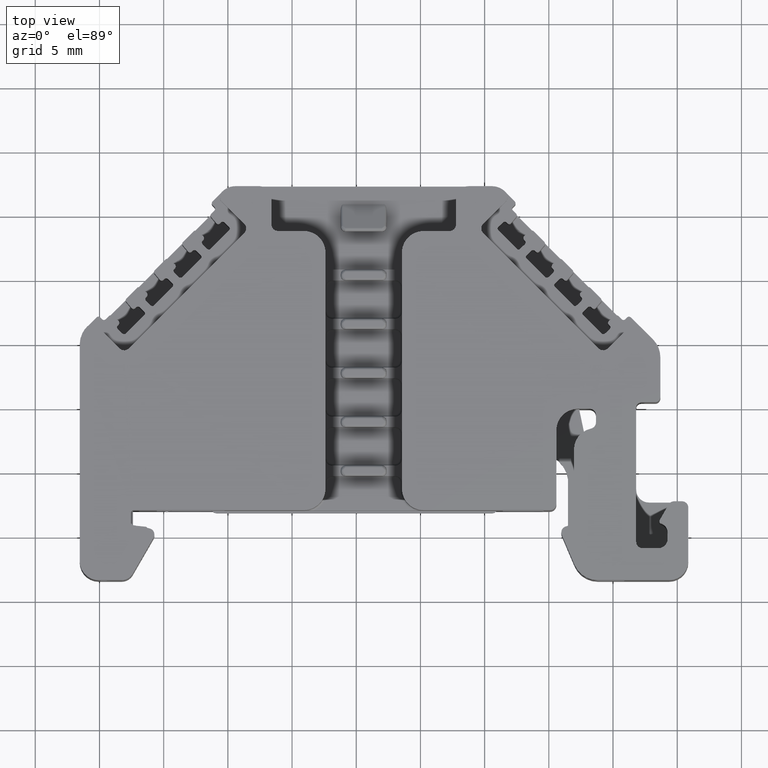
[diagram: clean part render]
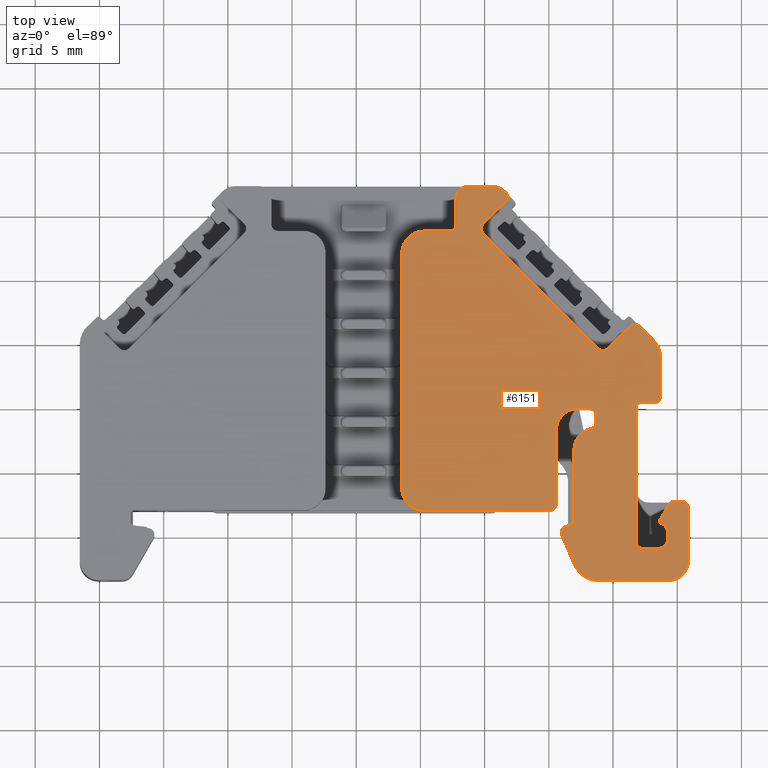
[diagram: same view with one face highlighted and labeled with its STEP entity id]
A machine part, top view. The second image highlights one B-rep face of the part: STEP entity #6151.
In plain terms, the highlighted planar face has unit normal (0, 0, 1).
Its self-contained STEP definition (entity closure, byte-faithful):
#73 = DIRECTION ( 'NONE',  ( -0.0000000000000000000, -0.0000000000000000000, -1.000000000000000000 ) ) ;
#82 = DIRECTION ( 'NONE',  ( 1.000000000000000000, -8.715823494909338000E-014, 0.0000000000000000000 ) ) ;
#88 = CARTESIAN_POINT ( 'NONE',  ( -249.7762473069555500, -1.020564901228759600, 8.498021178400511700 ) ) ;
#109 = DIRECTION ( 'NONE',  ( -0.7116619484723772900, -0.7025220787252878200, 0.0000000000000000000 ) ) ;
#116 = CARTESIAN_POINT ( 'NONE',  ( -238.6743608650446300, -8.656500748587717500, 8.498021178400510000 ) ) ;
#144 = LINE ( 'NONE', #116, #16601 ) ;
#157 = DIRECTION ( 'NONE',  ( -1.000000000000000000, 0.0000000000000000000, 0.0000000000000000000 ) ) ;
#183 = CARTESIAN_POINT ( 'NONE',  ( -254.7689907674576900, -2.906987126358033400, 8.498021178400510000 ) ) ;
#187 = DIRECTION ( 'NONE',  ( -0.0000000000000000000, -0.0000000000000000000, 1.000000000000000000 ) ) ;
#269 = LINE ( 'NONE', #286, #16568 ) ;
#273 = DIRECTION ( 'NONE',  ( -0.7071067811865474600, 0.7071067811865474600, -0.0000000000000000000 ) ) ;
#286 = CARTESIAN_POINT ( 'NONE',  ( -222.4855863816189300, -24.05920298296593900, 8.498021178400524200 ) ) ;
#311 = LINE ( 'NONE', #340, #16581 ) ;
#327 = DIRECTION ( 'NONE',  ( 1.000000000000000000, 1.144917493975123900E-011, -0.0000000000000000000 ) ) ;
#340 = CARTESIAN_POINT ( 'NONE',  ( -242.3187895104255200, -14.55571399533997500, 8.498021178400511700 ) ) ;
#343 = LINE ( 'NONE', #355, #16638 ) ;
#354 = DIRECTION ( 'NONE',  ( 0.9999999976762969900, 6.817188523727749200E-005, -0.0000000000000000000 ) ) ;
#355 = CARTESIAN_POINT ( 'NONE',  ( -215.5813241533131500, -22.26813505548619800, 8.498021178400531300 ) ) ;
#697 = DIRECTION ( 'NONE',  ( -1.000000000000000000, -0.0000000000000000000, -0.0000000000000000000 ) ) ;
#709 = CARTESIAN_POINT ( 'NONE',  ( -236.7108333289609200, -25.94257073046048100, 8.498021178400510000 ) ) ;
#740 = LINE ( 'NONE', #709, #14816 ) ;
#984 = CARTESIAN_POINT ( 'NONE',  ( -244.4135319854846400, -22.47648307557049900, 8.498021178400511700 ) ) ;
#995 = CARTESIAN_POINT ( 'NONE',  ( -244.4135319854846100, -22.60609756253073100, 8.498021178400511700 ) ) ;
#998 = CARTESIAN_POINT ( 'NONE',  ( -244.9086228565896000, -22.97157394667562300, 8.498021178400511700 ) ) ;
#1013 = CARTESIAN_POINT ( 'NONE',  ( -244.4668894616580700, -22.73491390516280600, 8.498021178400511700 ) ) ;
#1025 = CARTESIAN_POINT ( 'NONE',  ( -244.6501920269972500, -22.91821647050199900, 8.498021178400511700 ) ) ;
#1027 = CARTESIAN_POINT ( 'NONE',  ( -244.7790083696293700, -22.97157394667550200, 8.498021178400511700 ) ) ;
#1073 = VERTEX_POINT ( 'NONE', #4589 ) ;
#1088 = VERTEX_POINT ( 'NONE', #4582 ) ;
#1091 = VERTEX_POINT ( 'NONE', #4584 ) ;
#1098 = VERTEX_POINT ( 'NONE', #4610 ) ;
#1099 = VERTEX_POINT ( 'NONE', #4608 ) ;
#1103 = VERTEX_POINT ( 'NONE', #4613 ) ;
#1112 = VERTEX_POINT ( 'NONE', #4661 ) ;
#1116 = VERTEX_POINT ( 'NONE', #4637 ) ;
#1118 = VERTEX_POINT ( 'NONE', #4668 ) ;
#1127 = VERTEX_POINT ( 'NONE', #4624 ) ;
#1148 = VERTEX_POINT ( 'NONE', #4641 ) ;
#1152 = VERTEX_POINT ( 'NONE', #4642 ) ;
#1189 = VERTEX_POINT ( 'NONE', #4725 ) ;
#1242 = VERTEX_POINT ( 'NONE', #4746 ) ;
#1332 = B_SPLINE_CURVE_WITH_KNOTS ( 'NONE', 3,
 ( #984, #995, #1013, #1025, #1027, #998 ),
 .UNSPECIFIED., .F., .F.,
 ( 4, 2, 4 ),
 ( 0.0000000000000000000, 0.5000000000000000000, 1.000000000000000000 ),
 .UNSPECIFIED. ) ;
#1359 = VERTEX_POINT ( 'NONE', #4778 ) ;
#1439 = B_SPLINE_CURVE_WITH_KNOTS ( 'NONE', 3,
 ( #3124, #3137, #3138, #3140, #3104, #3105, #3146, #3170, #3187, #3188, #3199, #3171, #3201, #3159 ),
 .UNSPECIFIED., .F., .F.,
 ( 4, 2, 2, 1, 1, 2, 2, 4 ),
 ( 0.0000000000000000000, 0.2500000000003287400, 0.5000000000006574700, 0.6250000000008217900, 0.6875000000009038300, 0.7187500000009450200, 0.7500000000009862100, 1.000000000000000000 ),
 .UNSPECIFIED. ) ;
#1481 = B_SPLINE_CURVE_WITH_KNOTS ( 'NONE', 3,
 ( #21588, #21626, #21608, #21602, #21610, #21628, #21600, #21620, #21629, #21614, #21580 ),
 .UNSPECIFIED., .F., .F.,
 ( 4, 2, 1, 2, 2, 4 ),
 ( 0.0000000000000000000, 0.4999999999999927800, 0.6250000000000143200, 0.6875000000000102100, 0.7500000000000060000, 1.000000000000000000 ),
 .UNSPECIFIED. ) ;
#1605 = B_SPLINE_CURVE_WITH_KNOTS ( 'NONE', 3,
 ( #21966, #22017, #21993, #22023, #21983, #22003 ),
 .UNSPECIFIED., .F., .F.,
 ( 4, 2, 4 ),
 ( 0.0000000000000000000, 0.5000000000000000000, 1.000000000000000000 ),
 .UNSPECIFIED. ) ;
#1855 = B_SPLINE_CURVE_WITH_KNOTS ( 'NONE', 3,
 ( #14615, #14585, #14671, #14635, #14636, #14672 ),
 .UNSPECIFIED., .F., .F.,
 ( 4, 2, 4 ),
 ( 0.0000000000000000000, 0.5000000000000000000, 1.000000000000000000 ),
 .UNSPECIFIED. ) ;
#1974 = B_SPLINE_CURVE_WITH_KNOTS ( 'NONE', 3,
 ( #13862, #13831, #13847, #13828, #13832, #13843 ),
 .UNSPECIFIED., .F., .F.,
 ( 4, 2, 4 ),
 ( 0.0000000000000000000, 0.5000000000000000000, 1.000000000000000000 ),
 .UNSPECIFIED. ) ;
#2168 = EDGE_CURVE ( 'NONE', #18035, #22096, #4944, .T. ) ;
#2584 = EDGE_CURVE ( 'NONE', #1091, #18065, #17738, .T. ) ;
#2596 = EDGE_CURVE ( 'NONE', #1099, #18066, #17758, .T. ) ;
#2603 = EDGE_CURVE ( 'NONE', #10855, #17497, #17762, .T. ) ;
#2652 = EDGE_CURVE ( 'NONE', #18039, #22094, #17790, .T. ) ;
#2670 = EDGE_CURVE ( 'NONE', #1088, #22032, #17801, .T. ) ;
#2673 = EDGE_CURVE ( 'NONE', #9610, #18061, #17797, .T. ) ;
#2677 = EDGE_CURVE ( 'NONE', #22086, #1127, #17812, .T. ) ;
#2689 = EDGE_CURVE ( 'NONE', #22096, #22632, #17815, .T. ) ;
#2757 = VERTEX_POINT ( 'NONE', #20113 ) ;
#2791 = VERTEX_POINT ( 'NONE', #20111 ) ;
#3104 = CARTESIAN_POINT ( 'NONE',  ( -252.3409624411216900, -1.031983799909655900, 8.498021178400508200 ) ) ;
#3105 = CARTESIAN_POINT ( 'NONE',  ( -252.4095757898710400, -1.101879164453230400, 8.498021178400506400 ) ) ;
#3124 = CARTESIAN_POINT ( 'NONE',  ( -252.2417029484520000, -0.7285056311585247400, 8.498021178400510000 ) ) ;
#3137 = CARTESIAN_POINT ( 'NONE',  ( -252.2428043055238000, -0.7970822493878825200, 8.498021178400510000 ) ) ;
#3138 = CARTESIAN_POINT ( 'NONE',  ( -252.2554384611572700, -0.8605434817064653300, 8.498021178400510000 ) ) ;
#3140 = CARTESIAN_POINT ( 'NONE',  ( -252.3037723695470300, -0.9772351745220814200, 8.498021178400510000 ) ) ;
#3146 = CARTESIAN_POINT ( 'NONE',  ( -252.4477084235377000, -1.133134118474123000, 8.498021178400510000 ) ) ;
#3159 = CARTESIAN_POINT ( 'NONE',  ( -252.7367739251235700, -1.223596501863810400, 8.498021178400510000 ) ) ;
#3170 = CARTESIAN_POINT ( 'NONE',  ( -252.4988919249096600, -1.163135957059429500, 8.498021178400510000 ) ) ;
#3171 = CARTESIAN_POINT ( 'NONE',  ( -252.6089013505593100, -1.210938953082484300, 8.498021178400508200 ) ) ;
#3187 = CARTESIAN_POINT ( 'NONE',  ( -252.5222624459463800, -1.174609114787617200, 8.498021178400510000 ) ) ;
#3188 = CARTESIAN_POINT ( 'NONE',  ( -252.5381616232453200, -1.181950159252168000, 8.498021178400513500 ) ) ;
#3199 = CARTESIAN_POINT ( 'NONE',  ( -252.5477437573174800, -1.186065945135715800, 8.498021178400510000 ) ) ;
#3201 = CARTESIAN_POINT ( 'NONE',  ( -252.6696463104486800, -1.222527916141969300, 8.498021178400510000 ) ) ;
#4582 = CARTESIAN_POINT ( 'NONE',  ( -251.2515212062420500, 2.278096367804687700, 8.498021178400511700 ) ) ;
#4584 = CARTESIAN_POINT ( 'NONE',  ( -234.1365920300655700, -22.76445712408548500, 8.498021178400511700 ) ) ;
#4589 = CARTESIAN_POINT ( 'NONE',  ( -241.3280807490684800, -15.54589593503098600, 8.498021178400510000 ) ) ;
#4608 = CARTESIAN_POINT ( 'NONE',  ( -236.3147773137453700, -11.05030546451253800, 8.498021178400510000 ) ) ;
#4610 = CARTESIAN_POINT ( 'NONE',  ( -241.3280807490684800, -16.12412196492352100, 8.498021178400510000 ) ) ;
#4613 = CARTESIAN_POINT ( 'NONE',  ( -234.1365920300656000, -26.93266702404786300, 8.498021178400511700 ) ) ;
#4624 = CARTESIAN_POINT ( 'NONE',  ( -249.4381057926461000, 2.278096367804687700, 8.498021178400511700 ) ) ;
#4637 = CARTESIAN_POINT ( 'NONE',  ( -243.0481573067123700, -18.25375987659870300, 8.498021178400510000 ) ) ;
#4641 = CARTESIAN_POINT ( 'NONE',  ( -241.7190072394439800, -16.60813100661460600, 8.498021178400510000 ) ) ;
#4642 = CARTESIAN_POINT ( 'NONE',  ( -235.6218646433806300, -28.41793963736284600, 8.498021178400511700 ) ) ;
#4661 = CARTESIAN_POINT ( 'NONE',  ( -243.0481573067123700, -23.67083131780067600, 8.498021178400510000 ) ) ;
#4668 = CARTESIAN_POINT ( 'NONE',  ( -243.4572773524452300, -24.15840078755485000, 8.498021178400510000 ) ) ;
#4725 = CARTESIAN_POINT ( 'NONE',  ( -241.1789237545942800, -28.41793963736255800, 8.498021178400511700 ) ) ;
#4746 = CARTESIAN_POINT ( 'NONE',  ( -235.2418472796404700, -22.26947535041557600, 8.498021178400522400 ) ) ;
#4778 = CARTESIAN_POINT ( 'NONE',  ( -236.7108333316977600, -25.94257073046082600, 8.498021178400510000 ) ) ;
#4944 = LINE ( 'NONE', #4947, #17578 ) ;
#4947 = CARTESIAN_POINT ( 'NONE',  ( -244.4135319854846700, -2.512297812365318800, 8.498021178400510000 ) ) ;
#4998 = DIRECTION ( 'NONE',  ( -0.0000000000000000000, 1.000000000000000000, 0.0000000000000000000 ) ) ;
#5663 = EDGE_CURVE ( 'NONE', #22747, #18845, #1481, .T. ) ;
#5771 = EDGE_CURVE ( 'NONE', #22747, #22535, #1605, .T. ) ;
#5786 = EDGE_CURVE ( 'NONE', #18845, #22483, #10935, .T. ) ;
#6020 = EDGE_CURVE ( 'NONE', #22632, #22689, #11820, .T. ) ;
#6151 = ADVANCED_FACE ( 'NONE', ( #12488 ), #12478, .T. ) ;
#6232 = EDGE_CURVE ( 'NONE', #1098, #1148, #24181, .T. ) ;
#6236 = EDGE_CURVE ( 'NONE', #22044, #1189, #24193, .T. ) ;
#6239 = EDGE_CURVE ( 'NONE', #1073, #1098, #13024, .T. ) ;
#6246 = EDGE_CURVE ( 'NONE', #1091, #1103, #13045, .T. ) ;
#6248 = EDGE_CURVE ( 'NONE', #1116, #1112, #13049, .T. ) ;
#6249 = EDGE_CURVE ( 'NONE', #17497, #9610, #13081, .T. ) ;
#6252 = EDGE_CURVE ( 'NONE', #1103, #1152, #24255, .T. ) ;
#6258 = EDGE_CURVE ( 'NONE', #1148, #1116, #24228, .T. ) ;
#6270 = EDGE_CURVE ( 'NONE', #1112, #1118, #24222, .T. ) ;
#6271 = EDGE_CURVE ( 'NONE', #22689, #1073, #24237, .T. ) ;
#6278 = EDGE_CURVE ( 'NONE', #1118, #17982, #12937, .T. ) ;
#6279 = EDGE_CURVE ( 'NONE', #1189, #1152, #13234, .T. ) ;
#6280 = EDGE_CURVE ( 'NONE', #1127, #1088, #13202, .T. ) ;
#6284 = EDGE_CURVE ( 'NONE', #22094, #1099, #13216, .T. ) ;
#6428 = EDGE_CURVE ( 'NONE', #17987, #17982, #1974, .T. ) ;
#6615 = EDGE_CURVE ( 'NONE', #2757, #1242, #1855, .T. ) ;
#6669 = EDGE_CURVE ( 'NONE', #2791, #1359, #15034, .T. ) ;
#6924 = EDGE_CURVE ( 'NONE', #18522, #18509, #16280, .T. ) ;
#6938 = EDGE_CURVE ( 'NONE', #22064, #22070, #16379, .T. ) ;
#6939 = EDGE_CURVE ( 'NONE', #22083, #17495, #17214, .T. ) ;
#6942 = EDGE_CURVE ( 'NONE', #22037, #18522, #17284, .T. ) ;
#6950 = EDGE_CURVE ( 'NONE', #22032, #18068, #17288, .T. ) ;
#6953 = EDGE_CURVE ( 'NONE', #18048, #22040, #16278, .T. ) ;
#6962 = EDGE_CURVE ( 'NONE', #18001, #22036, #17351, .T. ) ;
#6963 = EDGE_CURVE ( 'NONE', #22070, #22052, #17334, .T. ) ;
#6974 = EDGE_CURVE ( 'NONE', #17495, #9608, #16395, .T. ) ;
#6987 = EDGE_CURVE ( 'NONE', #9608, #18045, #17381, .T. ) ;
#6994 = EDGE_CURVE ( 'NONE', #17987, #22044, #17419, .T. ) ;
#6995 = EDGE_CURVE ( 'NONE', #18509, #22086, #16403, .T. ) ;
#7025 = EDGE_CURVE ( 'NONE', #22052, #22037, #16540, .T. ) ;
#7036 = EDGE_CURVE ( 'NONE', #22040, #22064, #144, .T. ) ;
#7042 = EDGE_CURVE ( 'NONE', #22036, #22083, #16587, .T. ) ;
#7069 = EDGE_CURVE ( 'NONE', #18066, #18048, #269, .T. ) ;
#7077 = EDGE_CURVE ( 'NONE', #18061, #18039, #311, .T. ) ;
#7090 = EDGE_CURVE ( 'NONE', #1242, #18065, #343, .T. ) ;
#7182 = EDGE_CURVE ( 'NONE', #1359, #10855, #740, .T. ) ;
#7260 = EDGE_CURVE ( 'NONE', #18035, #18045, #1332, .T. ) ;
#7296 = EDGE_CURVE ( 'NONE', #18068, #18001, #1439, .T. ) ;
#7523 = EDGE_CURVE ( 'NONE', #2757, #22535, #8585, .T. ) ;
#7548 = EDGE_CURVE ( 'NONE', #22483, #2791, #24503, .T. ) ;
#7837 = CARTESIAN_POINT ( 'NONE',  ( -252.2417029484520000, -0.7285056311585247400, 8.498021178400510000 ) ) ;
#7847 = CARTESIAN_POINT ( 'NONE',  ( -248.3873132571849900, 1.046228372820613200, 8.498021178400511700 ) ) ;
#7865 = CARTESIAN_POINT ( 'NONE',  ( -236.8948123491185000, -9.649977015465792000, 8.498021178400510000 ) ) ;
#7879 = CARTESIAN_POINT ( 'NONE',  ( -235.7492650406876700, -24.70256073005829800, 8.498021178400511700 ) ) ;
#7898 = CARTESIAN_POINT ( 'NONE',  ( -248.2208901358063700, 1.444367881857992100, 8.498021178400511700 ) ) ;
#7902 = CARTESIAN_POINT ( 'NONE',  ( -252.2417029484520600, 1.287914625594687400, 8.498021178400510000 ) ) ;
#7952 = CARTESIAN_POINT ( 'NONE',  ( -250.1240610794955900, -0.6682290525229883600, 8.498021178400511700 ) ) ;
#7962 = CARTESIAN_POINT ( 'NONE',  ( -254.7690584085315800, -1.223678165960060600, 8.498021178400510000 ) ) ;
#7971 = CARTESIAN_POINT ( 'NONE',  ( -241.1192790592797900, -10.37879012811012400, 8.498021178400510000 ) ) ;
#7975 = CARTESIAN_POINT ( 'NONE',  ( -240.4213634446920500, -10.38106658553718700, 8.498021178400511700 ) ) ;
#7990 = CARTESIAN_POINT ( 'NONE',  ( -238.6743608650446000, -8.656500748587717500, 8.498021178400511700 ) ) ;
#7992 = CARTESIAN_POINT ( 'NONE',  ( -243.0002330180595900, -27.21518279980067600, 8.498021178400511700 ) ) ;
#7995 = CARTESIAN_POINT ( 'NONE',  ( -256.4522997292147600, -2.906987126358034200, 8.498021178400510000 ) ) ;
#7998 = CARTESIAN_POINT ( 'NONE',  ( -248.3798405562309600, 1.834989492392564700, 8.498021178400511700 ) ) ;
#8015 = CARTESIAN_POINT ( 'NONE',  ( -250.1263506536168700, -1.370625777803190500, 8.498021178400511700 ) ) ;
#8017 = CARTESIAN_POINT ( 'NONE',  ( -236.3147773137438600, -14.15964129839157500, 8.498021178400510000 ) ) ;
#8019 = CARTESIAN_POINT ( 'NONE',  ( -244.4135319854846700, -16.73411382813915800, 8.498021178400511700 ) ) ;
#8051 = CARTESIAN_POINT ( 'NONE',  ( -235.7492650406875900, -25.19765160116328700, 8.498021178400511700 ) ) ;
#8069 = CARTESIAN_POINT ( 'NONE',  ( -242.7302230237276300, -15.05080486638215100, 8.498021178400511700 ) ) ;
#8074 = CARTESIAN_POINT ( 'NONE',  ( -241.8231716201734100, -15.05080486638214600, 8.498021178400510000 ) ) ;
#8111 = CARTESIAN_POINT ( 'NONE',  ( -236.3839017867237500, -23.76688685095150800, 8.498021178400511700 ) ) ;
#8298 = CARTESIAN_POINT ( 'NONE',  ( -236.2947555402149900, -23.98489507003267500, 8.498021178400511700 ) ) ;
#8585 = LINE ( 'NONE', #8605, #15348 ) ;
#8605 = CARTESIAN_POINT ( 'NONE',  ( -235.6624214379854700, -22.51699068626992400, 8.498021178400511700 ) ) ;
#8606 = DIRECTION ( 'NONE',  ( -0.4999233245515611900, -0.8660696678497142900, -0.0000000000000000000 ) ) ;
#8742 = CARTESIAN_POINT ( 'NONE',  ( -235.7492650406875900, -25.19765160116328700, 8.498021178400511700 ) ) ;
#8743 = CARTESIAN_POINT ( 'NONE',  ( -235.8953022262949700, -25.65201208792303000, 8.498021178400510000 ) ) ;
#8745 = CARTESIAN_POINT ( 'NONE',  ( -235.7493948461929000, -25.24517692591066600, 8.498021178400511700 ) ) ;
#8746 = CARTESIAN_POINT ( 'NONE',  ( -236.0034833579896400, -25.76049114424465000, 8.498021178400510000 ) ) ;
#8753 = CARTESIAN_POINT ( 'NONE',  ( -235.7853323454623900, -25.42772872162919000, 8.498021178400508200 ) ) ;
#8754 = CARTESIAN_POINT ( 'NONE',  ( -236.0620922665172500, -25.80834360993105700, 8.498021178400511700 ) ) ;
#8761 = CARTESIAN_POINT ( 'NONE',  ( -236.1383764261562700, -25.85299412723492900, 8.498021178400508200 ) ) ;
#8763 = CARTESIAN_POINT ( 'NONE',  ( -236.1727640159351200, -25.86973491479439600, 8.498021178400510000 ) ) ;
#8768 = CARTESIAN_POINT ( 'NONE',  ( -236.1960656043444000, -25.88036318462783900, 8.498021178400508200 ) ) ;
#8769 = CARTESIAN_POINT ( 'NONE',  ( -236.3069654373192300, -25.92479624188564800, 8.498021178400510000 ) ) ;
#8771 = CARTESIAN_POINT ( 'NONE',  ( -236.3983557215921700, -25.94222835095199600, 8.498021178400511700 ) ) ;
#8774 = CARTESIAN_POINT ( 'NONE',  ( -235.8390570216058100, -25.56688178096770500, 8.498021178400510000 ) ) ;
#8777 = CARTESIAN_POINT ( 'NONE',  ( -235.7723231664122900, -25.38294867079852700, 8.498021178400511700 ) ) ;
#8778 = CARTESIAN_POINT ( 'NONE',  ( -236.2090528041225400, -25.88586767537278600, 8.498021178400510000 ) ) ;
#8782 = CARTESIAN_POINT ( 'NONE',  ( -235.7560292412231300, -25.31509227607334700, 8.498021178400508200 ) ) ;
#8785 = CARTESIAN_POINT ( 'NONE',  ( -235.7921874544721000, -25.44805762223391500, 8.498021178400510000 ) ) ;
#8815 = CARTESIAN_POINT ( 'NONE',  ( -234.6235413669897700, -22.26943319933576900, 8.498021178400520600 ) ) ;
#8840 = CARTESIAN_POINT ( 'NONE',  ( -236.4941028384079700, -25.94248939885105200, 8.498021178400510000 ) ) ;
#9608 = VERTEX_POINT ( 'NONE', #10124 ) ;
#9610 = VERTEX_POINT ( 'NONE', #10113 ) ;
#9623 = CARTESIAN_POINT ( 'NONE',  ( -252.7367739251235700, -1.223596501863810400, 8.498021178400510000 ) ) ;
#9642 = CARTESIAN_POINT ( 'NONE',  ( -243.9901762766351100, -24.89653900420753600, 8.498021178400510000 ) ) ;
#9650 = CARTESIAN_POINT ( 'NONE',  ( -244.4135319854846400, -22.47648307557049900, 8.498021178400511700 ) ) ;
#9657 = CARTESIAN_POINT ( 'NONE',  ( -243.6208197861406900, -24.21456787273882600, 8.498021178400510000 ) ) ;
#9663 = CARTESIAN_POINT ( 'NONE',  ( -236.7108500106246500, -14.55571399527577700, 8.498021178400510000 ) ) ;
#9958 = CARTESIAN_POINT ( 'NONE',  ( -244.9086228565896000, -22.97157394667562300, 8.498021178400511700 ) ) ;
#10113 = CARTESIAN_POINT ( 'NONE',  ( -238.1961226239573400, -14.95178669216089800, 8.498021178400510000 ) ) ;
#10124 = CARTESIAN_POINT ( 'NONE',  ( -254.7689907674576900, -22.97157394667569400, 8.498021178400511700 ) ) ;
#10140 = CARTESIAN_POINT ( 'NONE',  ( -237.7009983893682100, -25.94257073046048100, 8.498021178400510000 ) ) ;
#10313 = CARTESIAN_POINT ( 'NONE',  ( -237.8857402154315500, -8.659049149153368300, 8.498021178400511700 ) ) ;
#10424 = CARTESIAN_POINT ( 'NONE',  ( -238.1961226239573400, -25.44747986047864800, 8.498021178400510000 ) ) ;
#10454 = CARTESIAN_POINT ( 'NONE',  ( -256.4522997292147000, -21.28826498491869400, 8.498021178400511700 ) ) ;
#10750 = CARTESIAN_POINT ( 'NONE',  ( -237.8000499270768300, -14.55571399528255900, 8.498021178400510000 ) ) ;
#10855 = VERTEX_POINT ( 'NONE', #10140 ) ;
#10918 = DIRECTION ( 'NONE',  ( -0.0000000000000000000, -1.000000000000000000, -0.0000000000000000000 ) ) ;
#10923 = CARTESIAN_POINT ( 'NONE',  ( -235.7492650406877600, -25.19765160116328700, 8.498021178400511700 ) ) ;
#10935 = LINE ( 'NONE', #10923, #23808 ) ;
#11808 = DIRECTION ( 'NONE',  ( 1.000000000000000000, 0.0000000000000000000, -0.0000000000000000000 ) ) ;
#11820 = LINE ( 'NONE', #11833, #24001 ) ;
#11833 = CARTESIAN_POINT ( 'NONE',  ( -215.5761283162624700, -15.05080486638214600, 8.498021178400511700 ) ) ;
#12422 = CARTESIAN_POINT ( 'NONE',  ( -243.6208197861406900, -24.21456787273882600, 8.498021178400510000 ) ) ;
#12456 = CARTESIAN_POINT ( 'NONE',  ( -306.2343412433721700, -2.512297812365318800, 8.498021178400510000 ) ) ;
#12463 = DIRECTION ( 'NONE',  ( 1.000000000000000000, 0.0000000000000000000, -0.0000000000000000000 ) ) ;
#12478 = PLANE ( 'NONE',  #24109 ) ;
#12488 = FACE_OUTER_BOUND ( 'NONE', #20660, .T. ) ;
#12498 = DIRECTION ( 'NONE',  ( 0.0000000000000000000, 0.0000000000000000000, 1.000000000000000000 ) ) ;
#12937 = LINE ( 'NONE', #12422, #24244 ) ;
#12996 = DIRECTION ( 'NONE',  ( 1.000000000000000000, 0.0000000000000000000, 0.0000000000000000000 ) ) ;
#12997 = DIRECTION ( 'NONE',  ( 0.0000000000000000000, -1.000000000000000000, 0.0000000000000000000 ) ) ;
#13001 = DIRECTION ( 'NONE',  ( 0.0000000000000000000, 0.0000000000000000000, 1.000000000000000000 ) ) ;
#13007 = CARTESIAN_POINT ( 'NONE',  ( -241.8231716201734400, -16.12412196492352100, 8.498021178400510000 ) ) ;
#13019 = DIRECTION ( 'NONE',  ( 1.000000000000000000, 0.0000000000000000000, 0.0000000000000000000 ) ) ;
#13024 = LINE ( 'NONE', #13025, #24199 ) ;
#13025 = CARTESIAN_POINT ( 'NONE',  ( -241.3280807490684800, -15.54589593503098600, 8.498021178400510000 ) ) ;
#13030 = CARTESIAN_POINT ( 'NONE',  ( -241.1789237545942500, -26.43757615294285300, 8.498021178400511700 ) ) ;
#13036 = DIRECTION ( 'NONE',  ( -0.0000000000000000000, -0.0000000000000000000, -1.000000000000000000 ) ) ;
#13038 = CARTESIAN_POINT ( 'NONE',  ( -234.1365920300655700, -98.48484845154556000, 8.498021178400511700 ) ) ;
#13039 = CARTESIAN_POINT ( 'NONE',  ( -235.6218646433805800, -26.93266702404786300, 8.498021178400511700 ) ) ;
#13044 = CARTESIAN_POINT ( 'NONE',  ( -241.3648483449640900, -18.25376174835660900, 8.498021178400510000 ) ) ;
#13045 = LINE ( 'NONE', #13038, #24201 ) ;
#13047 = DIRECTION ( 'NONE',  ( 0.0000000000000000000, -1.000000000000000000, 0.0000000000000000000 ) ) ;
#13049 = LINE ( 'NONE', #13080, #24242 ) ;
#13053 = DIRECTION ( 'NONE',  ( -0.0000000000000000000, -1.000000000000000000, -0.0000000000000000000 ) ) ;
#13056 = CARTESIAN_POINT ( 'NONE',  ( -238.1961226239573400, -14.95178669216089800, 8.498021178400510000 ) ) ;
#13058 = DIRECTION ( 'NONE',  ( -0.0000000000000000000, -0.0000000000000000000, -1.000000000000000000 ) ) ;
#13067 = DIRECTION ( 'NONE',  ( 0.0000000000000000000, 0.0000000000000000000, 1.000000000000000000 ) ) ;
#13071 = DIRECTION ( 'NONE',  ( 1.000000000000000000, 0.0000000000000000000, 0.0000000000000000000 ) ) ;
#13074 = DIRECTION ( 'NONE',  ( 0.0000000000000000000, 1.000000000000000000, -0.0000000000000000000 ) ) ;
#13080 = CARTESIAN_POINT ( 'NONE',  ( -243.0481573067123700, -18.25375987659870300, 8.498021178400510000 ) ) ;
#13081 = LINE ( 'NONE', #13056, #24202 ) ;
#13097 = DIRECTION ( 'NONE',  ( -0.0000000000000000000, -0.0000000000000000000, -1.000000000000000000 ) ) ;
#13102 = DIRECTION ( 'NONE',  ( 1.000000000000000000, 0.0000000000000000000, 0.0000000000000000000 ) ) ;
#13104 = CARTESIAN_POINT ( 'NONE',  ( -243.5432481778173600, -23.67083131780068000, 8.498021178400510000 ) ) ;
#13105 = CARTESIAN_POINT ( 'NONE',  ( -241.8231716201734100, -15.54589573748712700, 8.498021178400510000 ) ) ;
#13106 = DIRECTION ( 'NONE',  ( -0.0000000000000000000, -0.0000000000000000000, -1.000000000000000000 ) ) ;
#13112 = DIRECTION ( 'NONE',  ( 1.000000000000000000, 0.0000000000000000000, 0.0000000000000000000 ) ) ;
#13123 = DIRECTION ( 'NONE',  ( 1.000000000000000000, 0.0000000000000000000, 0.0000000000000000000 ) ) ;
#13202 = LINE ( 'NONE', #13241, #24293 ) ;
#13210 = DIRECTION ( 'NONE',  ( 1.000000000000000000, -5.069253405593720000E-014, -0.0000000000000000000 ) ) ;
#13213 = CARTESIAN_POINT ( 'NONE',  ( -257.8386614401953200, -28.41793963736171600, 8.498021178400511700 ) ) ;
#13214 = CARTESIAN_POINT ( 'NONE',  ( -236.3147773137449700, -11.85530006980985900, 8.498021178400510000 ) ) ;
#13216 = LINE ( 'NONE', #13214, #24264 ) ;
#13234 = LINE ( 'NONE', #13213, #24288 ) ;
#13238 = DIRECTION ( 'NONE',  ( -1.000000000000000000, 3.722501875512039800E-018, -0.0000000000000000000 ) ) ;
#13239 = DIRECTION ( 'NONE',  ( -4.772998309357720400E-013, 1.000000000000000000, -0.0000000000000000000 ) ) ;
#13241 = CARTESIAN_POINT ( 'NONE',  ( -257.8742277998431400, 2.278096367804687700, 8.498021178400511700 ) ) ;
#13828 = CARTESIAN_POINT ( 'NONE',  ( -243.8994642821058700, -24.33576904424031200, 8.498021178400510000 ) ) ;
#13831 = CARTESIAN_POINT ( 'NONE',  ( -244.0484898278165200, -24.75995708148176200, 8.498021178400511700 ) ) ;
#13832 = CARTESIAN_POINT ( 'NONE',  ( -243.7670732027948800, -24.24035604801067100, 8.498021178400510000 ) ) ;
#13843 = CARTESIAN_POINT ( 'NONE',  ( -243.6208197861406900, -24.21456787273882600, 8.498021178400510000 ) ) ;
#13847 = CARTESIAN_POINT ( 'NONE',  ( -244.0409163037042800, -24.59694272793218800, 8.498021178400510000 ) ) ;
#13862 = CARTESIAN_POINT ( 'NONE',  ( -243.9901762766351100, -24.89653900420753600, 8.498021178400510000 ) ) ;
#14585 = CARTESIAN_POINT ( 'NONE',  ( -235.6199035944241300, -22.44333256142818900, 8.498021178400511700 ) ) ;
#14615 = CARTESIAN_POINT ( 'NONE',  ( -235.6624214379857000, -22.51699068626984600, 8.498021178400511700 ) ) ;
#14635 = CARTESIAN_POINT ( 'NONE',  ( -235.4114514412686400, -22.29467827306097000, 8.498021178400511700 ) ) ;
#14636 = CARTESIAN_POINT ( 'NONE',  ( -235.3268843172641900, -22.27088553072288200, 8.498021178400511700 ) ) ;
#14671 = CARTESIAN_POINT ( 'NONE',  ( -235.5580461656062100, -22.38095186288788700, 8.498021178400511700 ) ) ;
#14672 = CARTESIAN_POINT ( 'NONE',  ( -235.2418472796404700, -22.26947535041557600, 8.498021178400522400 ) ) ;
#14816 = VECTOR ( 'NONE', #697, 1000.000000000000000 ) ;
#14998 = CARTESIAN_POINT ( 'NONE',  ( -236.4941028384079700, -25.94248939885104800, 8.498021178400510000 ) ) ;
#15034 = LINE ( 'NONE', #14998, #23516 ) ;
#15036 = DIRECTION ( 'NONE',  ( -0.9999999295876784700, -0.0003752660896935208100, -0.0000000000000000000 ) ) ;
#15348 = VECTOR ( 'NONE', #8606, 1000.000000000000000 ) ;
#16260 = VECTOR ( 'NONE', #17237, 1000.000000000000000 ) ;
#16264 = VECTOR ( 'NONE', #17290, 1000.000000000000000 ) ;
#16278 = CIRCLE ( 'NONE', #16376, 0.5594526843486491400 ) ;
#16280 = CIRCLE ( 'NONE', #16344, 0.5594526843486491400 ) ;
#16281 = AXIS2_PLACEMENT_3D ( 'NONE', #17230, #17223, #17238 ) ;
#16309 = VECTOR ( 'NONE', #17313, 999.9999999999998900 ) ;
#16344 = AXIS2_PLACEMENT_3D ( 'NONE', #17199, #17161, #17211 ) ;
#16368 = VECTOR ( 'NONE', #17301, 999.9999999999998900 ) ;
#16376 = AXIS2_PLACEMENT_3D ( 'NONE', #17275, #17306, #17276 ) ;
#16379 = CIRCLE ( 'NONE', #16281, 0.4950908711049695200 ) ;
#16395 = CIRCLE ( 'NONE', #16496, 1.683308961757001800 ) ;
#16403 = CIRCLE ( 'NONE', #16404, 0.5594526843486491400 ) ;
#16404 = AXIS2_PLACEMENT_3D ( 'NONE', #17417, #17423, #17429 ) ;
#16440 = VECTOR ( 'NONE', #17407, 1000.000000000000200 ) ;
#16475 = VECTOR ( 'NONE', #17440, 1000.000000000000000 ) ;
#16495 = VECTOR ( 'NONE', #17345, 1000.000000000000100 ) ;
#16496 = AXIS2_PLACEMENT_3D ( 'NONE', #17392, #17372, #17400 ) ;
#16540 = CIRCLE ( 'NONE', #16614, 0.4950908711050250300 ) ;
#16550 = AXIS2_PLACEMENT_3D ( 'NONE', #183, #187, #157 ) ;
#16568 = VECTOR ( 'NONE', #273, 1000.000000000000100 ) ;
#16581 = VECTOR ( 'NONE', #327, 1000.000000000000000 ) ;
#16587 = CIRCLE ( 'NONE', #16550, 1.683308961757001800 ) ;
#16601 = VECTOR ( 'NONE', #109, 1000.000000000000000 ) ;
#16614 = AXIS2_PLACEMENT_3D ( 'NONE', #88, #73, #82 ) ;
#16638 = VECTOR ( 'NONE', #354, 1000.000000000000100 ) ;
#17161 = DIRECTION ( 'NONE',  ( 0.0000000000000000000, 0.0000000000000000000, 1.000000000000000000 ) ) ;
#17199 = CARTESIAN_POINT ( 'NONE',  ( -248.7803428201550300, 1.444367881857992100, 8.498021178400511700 ) ) ;
#17211 = DIRECTION ( 'NONE',  ( 1.000000000000000000, 0.0000000000000000000, 0.0000000000000000000 ) ) ;
#17214 = LINE ( 'NONE', #17236, #16260 ) ;
#17223 = DIRECTION ( 'NONE',  ( -0.0000000000000000000, -0.0000000000000000000, -1.000000000000000000 ) ) ;
#17230 = CARTESIAN_POINT ( 'NONE',  ( -240.7691757126186200, -10.02872925153573600, 8.498021178400511700 ) ) ;
#17236 = CARTESIAN_POINT ( 'NONE',  ( -256.4522997292147600, -2.512297812365318800, 8.498021178400510000 ) ) ;
#17237 = DIRECTION ( 'NONE',  ( 0.0000000000000000000, -1.000000000000000000, -0.0000000000000000000 ) ) ;
#17238 = DIRECTION ( 'NONE',  ( 1.000000000000000000, -7.007697282339951900E-015, 0.0000000000000000000 ) ) ;
#17273 = CARTESIAN_POINT ( 'NONE',  ( -252.2417029484520600, -2.512297812365318800, 8.498021178400510000 ) ) ;
#17275 = CARTESIAN_POINT ( 'NONE',  ( -238.2813330022875400, -9.054641936009309300, 8.498021178400511700 ) ) ;
#17276 = DIRECTION ( 'NONE',  ( -1.000000000000000000, 9.302253029654244800E-014, 0.0000000000000000000 ) ) ;
#17284 = LINE ( 'NONE', #17286, #16368 ) ;
#17286 = CARTESIAN_POINT ( 'NONE',  ( -250.1240610794955900, -0.6682290525229736000, 8.498021178400510000 ) ) ;
#17288 = LINE ( 'NONE', #17273, #16264 ) ;
#17290 = DIRECTION ( 'NONE',  ( 0.0000000000000000000, -1.000000000000000000, -0.0000000000000000000 ) ) ;
#17301 = DIRECTION ( 'NONE',  ( 0.7116589484255201300, 0.7025251177900210300, 0.0000000000000000000 ) ) ;
#17306 = DIRECTION ( 'NONE',  ( -0.0000000000000000000, -0.0000000000000000000, 1.000000000000000000 ) ) ;
#17313 = DIRECTION ( 'NONE',  ( -0.9999999991926473700, -4.018339797190794200E-005, 0.0000000000000000000 ) ) ;
#17319 = CARTESIAN_POINT ( 'NONE',  ( -241.1192790592797900, -10.37879012811012400, 8.498021178400510000 ) ) ;
#17334 = LINE ( 'NONE', #17319, #16495 ) ;
#17339 = CARTESIAN_POINT ( 'NONE',  ( -252.7367739251235700, -1.223596501863810900, 8.498021178400510000 ) ) ;
#17345 = DIRECTION ( 'NONE',  ( -0.7070638886819908800, 0.7071496710894384900, 0.0000000000000000000 ) ) ;
#17351 = LINE ( 'NONE', #17339, #16309 ) ;
#17372 = DIRECTION ( 'NONE',  ( -0.0000000000000000000, -0.0000000000000000000, 1.000000000000000000 ) ) ;
#17381 = LINE ( 'NONE', #17418, #16475 ) ;
#17392 = CARTESIAN_POINT ( 'NONE',  ( -254.7689907674576900, -21.28826498491869400, 8.498021178400511700 ) ) ;
#17400 = DIRECTION ( 'NONE',  ( -1.000000000000000000, 0.0000000000000000000, 0.0000000000000000000 ) ) ;
#17407 = DIRECTION ( 'NONE',  ( 0.3926585462595914600, -0.9196843295660224200, 0.0000000000000000000 ) ) ;
#17413 = CARTESIAN_POINT ( 'NONE',  ( -243.9901762766351100, -24.89653900420753300, 8.498021178400510000 ) ) ;
#17417 = CARTESIAN_POINT ( 'NONE',  ( -248.7803428201550300, 1.444367881857992100, 8.498021178400511700 ) ) ;
#17418 = CARTESIAN_POINT ( 'NONE',  ( -306.2343412433721700, -22.97157394667569400, 8.498021178400510000 ) ) ;
#17419 = LINE ( 'NONE', #17413, #16440 ) ;
#17423 = DIRECTION ( 'NONE',  ( 0.0000000000000000000, 0.0000000000000000000, 1.000000000000000000 ) ) ;
#17429 = DIRECTION ( 'NONE',  ( 1.000000000000000000, 0.0000000000000000000, 0.0000000000000000000 ) ) ;
#17440 = DIRECTION ( 'NONE',  ( 1.000000000000000000, 0.0000000000000000000, -0.0000000000000000000 ) ) ;
#17495 = VERTEX_POINT ( 'NONE', #10454 ) ;
#17497 = VERTEX_POINT ( 'NONE', #10424 ) ;
#17578 = VECTOR ( 'NONE', #4998, 1000.000000000000000 ) ;
#17738 = CIRCLE ( 'NONE', #17766, 0.4950908711049972800 ) ;
#17756 = AXIS2_PLACEMENT_3D ( 'NONE', #19806, #19824, #19826 ) ;
#17758 = CIRCLE ( 'NONE', #17759, 1.980363484420266700 ) ;
#17759 = AXIS2_PLACEMENT_3D ( 'NONE', #19798, #19825, #19820 ) ;
#17762 = CIRCLE ( 'NONE', #17756, 0.4950908711059964800 ) ;
#17766 = AXIS2_PLACEMENT_3D ( 'NONE', #19803, #19817, #19810 ) ;
#17790 = CIRCLE ( 'NONE', #17794, 0.3960726968839922700 ) ;
#17794 = AXIS2_PLACEMENT_3D ( 'NONE', #20029, #20025, #19999 ) ;
#17795 = AXIS2_PLACEMENT_3D ( 'NONE', #20071, #20046, #20077 ) ;
#17797 = CIRCLE ( 'NONE', #17798, 0.3960726968840200300 ) ;
#17798 = AXIS2_PLACEMENT_3D ( 'NONE', #20069, #20067, #20045 ) ;
#17799 = AXIS2_PLACEMENT_3D ( 'NONE', #20052, #20048, #20081 ) ;
#17801 = CIRCLE ( 'NONE', #17795, 0.9901817422099945500 ) ;
#17812 = CIRCLE ( 'NONE', #17799, 1.485272613314964100 ) ;
#17815 = CIRCLE ( 'NONE', #17816, 1.683308961757001800 ) ;
#17816 = AXIS2_PLACEMENT_3D ( 'NONE', #20049, #20059, #20074 ) ;
#17982 = VERTEX_POINT ( 'NONE', #9657 ) ;
#17987 = VERTEX_POINT ( 'NONE', #9642 ) ;
#18001 = VERTEX_POINT ( 'NONE', #9623 ) ;
#18035 = VERTEX_POINT ( 'NONE', #9650 ) ;
#18039 = VERTEX_POINT ( 'NONE', #9663 ) ;
#18045 = VERTEX_POINT ( 'NONE', #9958 ) ;
#18048 = VERTEX_POINT ( 'NONE', #10313 ) ;
#18061 = VERTEX_POINT ( 'NONE', #10750 ) ;
#18065 = VERTEX_POINT ( 'NONE', #8815 ) ;
#18066 = VERTEX_POINT ( 'NONE', #7865 ) ;
#18068 = VERTEX_POINT ( 'NONE', #7837 ) ;
#18177 = ORIENTED_EDGE ( 'NONE', *, *, #6020, .T. ) ;
#18183 = ORIENTED_EDGE ( 'NONE', *, *, #6271, .T. ) ;
#18198 = ORIENTED_EDGE ( 'NONE', *, *, #6278, .T. ) ;
#18199 = ORIENTED_EDGE ( 'NONE', *, *, #6236, .T. ) ;
#18200 = ORIENTED_EDGE ( 'NONE', *, *, #6615, .F. ) ;
#18202 = ORIENTED_EDGE ( 'NONE', *, *, #7523, .T. ) ;
#18203 = ORIENTED_EDGE ( 'NONE', *, *, #7036, .T. ) ;
#18204 = ORIENTED_EDGE ( 'NONE', *, *, #6995, .T. ) ;
#18205 = ORIENTED_EDGE ( 'NONE', *, *, #7042, .T. ) ;
#18206 = ORIENTED_EDGE ( 'NONE', *, *, #6232, .T. ) ;
#18207 = ORIENTED_EDGE ( 'NONE', *, *, #6279, .T. ) ;
#18208 = ORIENTED_EDGE ( 'NONE', *, *, #6284, .T. ) ;
#18213 = ORIENTED_EDGE ( 'NONE', *, *, #6258, .T. ) ;
#18216 = ORIENTED_EDGE ( 'NONE', *, *, #7182, .T. ) ;
#18224 = ORIENTED_EDGE ( 'NONE', *, *, #2603, .T. ) ;
#18228 = ORIENTED_EDGE ( 'NONE', *, *, #7296, .T. ) ;
#18230 = ORIENTED_EDGE ( 'NONE', *, *, #6270, .T. ) ;
#18233 = ORIENTED_EDGE ( 'NONE', *, *, #6950, .T. ) ;
#18240 = ORIENTED_EDGE ( 'NONE', *, *, #6994, .T. ) ;
#18244 = ORIENTED_EDGE ( 'NONE', *, *, #6246, .F. ) ;
#18259 = ORIENTED_EDGE ( 'NONE', *, *, #2673, .T. ) ;
#18261 = ORIENTED_EDGE ( 'NONE', *, *, #6963, .T. ) ;
#18264 = ORIENTED_EDGE ( 'NONE', *, *, #2652, .T. ) ;
#18265 = ORIENTED_EDGE ( 'NONE', *, *, #6939, .T. ) ;
#18266 = ORIENTED_EDGE ( 'NONE', *, *, #6249, .T. ) ;
#18267 = ORIENTED_EDGE ( 'NONE', *, *, #6938, .T. ) ;
#18270 = ORIENTED_EDGE ( 'NONE', *, *, #7090, .F. ) ;
#18271 = ORIENTED_EDGE ( 'NONE', *, *, #2584, .T. ) ;
#18272 = ORIENTED_EDGE ( 'NONE', *, *, #6987, .T. ) ;
#18273 = ORIENTED_EDGE ( 'NONE', *, *, #2677, .T. ) ;
#18275 = ORIENTED_EDGE ( 'NONE', *, *, #7025, .T. ) ;
#18276 = ORIENTED_EDGE ( 'NONE', *, *, #6924, .T. ) ;
#18277 = ORIENTED_EDGE ( 'NONE', *, *, #6962, .T. ) ;
#18278 = ORIENTED_EDGE ( 'NONE', *, *, #5663, .T. ) ;
#18280 = ORIENTED_EDGE ( 'NONE', *, *, #7548, .T. ) ;
#18281 = ORIENTED_EDGE ( 'NONE', *, *, #2689, .T. ) ;
#18282 = ORIENTED_EDGE ( 'NONE', *, *, #6239, .T. ) ;
#18287 = ORIENTED_EDGE ( 'NONE', *, *, #6248, .T. ) ;
#18289 = ORIENTED_EDGE ( 'NONE', *, *, #6428, .F. ) ;
#18291 = ORIENTED_EDGE ( 'NONE', *, *, #6280, .T. ) ;
#18292 = ORIENTED_EDGE ( 'NONE', *, *, #6953, .T. ) ;
#18294 = ORIENTED_EDGE ( 'NONE', *, *, #2168, .T. ) ;
#18295 = ORIENTED_EDGE ( 'NONE', *, *, #6669, .T. ) ;
#18296 = ORIENTED_EDGE ( 'NONE', *, *, #6252, .F. ) ;
#18298 = ORIENTED_EDGE ( 'NONE', *, *, #6942, .T. ) ;
#18299 = ORIENTED_EDGE ( 'NONE', *, *, #2670, .T. ) ;
#18300 = ORIENTED_EDGE ( 'NONE', *, *, #5786, .T. ) ;
#18301 = ORIENTED_EDGE ( 'NONE', *, *, #6974, .T. ) ;
#18302 = ORIENTED_EDGE ( 'NONE', *, *, #7069, .T. ) ;
#18306 = ORIENTED_EDGE ( 'NONE', *, *, #2596, .T. ) ;
#18307 = ORIENTED_EDGE ( 'NONE', *, *, #5771, .F. ) ;
#18310 = ORIENTED_EDGE ( 'NONE', *, *, #7260, .F. ) ;
#18311 = ORIENTED_EDGE ( 'NONE', *, *, #7077, .T. ) ;
#18509 = VERTEX_POINT ( 'NONE', #7898 ) ;
#18522 = VERTEX_POINT ( 'NONE', #7847 ) ;
#18845 = VERTEX_POINT ( 'NONE', #7879 ) ;
#19620 = DIRECTION ( 'NONE',  ( -0.9457765692323463200, -0.3248179199045101400, -0.0000000000000000000 ) ) ;
#19798 = CARTESIAN_POINT ( 'NONE',  ( -238.2951407981659600, -11.05030546451330600, 8.498021178400510000 ) ) ;
#19803 = CARTESIAN_POINT ( 'NONE',  ( -234.6316829011433400, -22.76445712408399300, 8.498021178400511700 ) ) ;
#19806 = CARTESIAN_POINT ( 'NONE',  ( -237.7010317528513500, -25.44747986047864800, 8.498021178400510000 ) ) ;
#19810 = DIRECTION ( 'NONE',  ( 1.000000000000000000, 0.0000000000000000000, 0.0000000000000000000 ) ) ;
#19817 = DIRECTION ( 'NONE',  ( 0.0000000000000000000, 0.0000000000000000000, 1.000000000000000000 ) ) ;
#19820 = DIRECTION ( 'NONE',  ( -1.000000000000000000, 1.576731888526179900E-014, 0.0000000000000000000 ) ) ;
#19824 = DIRECTION ( 'NONE',  ( -0.0000000000000000000, -0.0000000000000000000, -1.000000000000000000 ) ) ;
#19825 = DIRECTION ( 'NONE',  ( -0.0000000000000000000, -0.0000000000000000000, 1.000000000000000000 ) ) ;
#19826 = DIRECTION ( 'NONE',  ( 1.000000000000000000, 0.0000000000000000000, 0.0000000000000000000 ) ) ;
#19999 = DIRECTION ( 'NONE',  ( -1.000000000000000000, 0.0000000000000000000, 0.0000000000000000000 ) ) ;
#20025 = DIRECTION ( 'NONE',  ( -0.0000000000000000000, -0.0000000000000000000, 1.000000000000000000 ) ) ;
#20029 = CARTESIAN_POINT ( 'NONE',  ( -236.7108500106280100, -14.15964129839179400, 8.498021178400510000 ) ) ;
#20045 = DIRECTION ( 'NONE',  ( 1.000000000000000000, 0.0000000000000000000, 0.0000000000000000000 ) ) ;
#20046 = DIRECTION ( 'NONE',  ( 0.0000000000000000000, 0.0000000000000000000, 1.000000000000000000 ) ) ;
#20048 = DIRECTION ( 'NONE',  ( 0.0000000000000000000, 0.0000000000000000000, 1.000000000000000000 ) ) ;
#20049 = CARTESIAN_POINT ( 'NONE',  ( -242.7302230237276300, -16.73411382813915800, 8.498021178400511700 ) ) ;
#20052 = CARTESIAN_POINT ( 'NONE',  ( -249.4381057926461000, 0.7928237544896933300, 8.498021178400511700 ) ) ;
#20059 = DIRECTION ( 'NONE',  ( -0.0000000000000000000, -0.0000000000000000000, -1.000000000000000000 ) ) ;
#20067 = DIRECTION ( 'NONE',  ( -0.0000000000000000000, -0.0000000000000000000, -1.000000000000000000 ) ) ;
#20069 = CARTESIAN_POINT ( 'NONE',  ( -237.8000499270734200, -14.95178669216089800, 8.498021178400510000 ) ) ;
#20071 = CARTESIAN_POINT ( 'NONE',  ( -251.2515212062420500, 1.287914625594686900, 8.498021178400510000 ) ) ;
#20074 = DIRECTION ( 'NONE',  ( 1.000000000000000000, 0.0000000000000000000, 0.0000000000000000000 ) ) ;
#20077 = DIRECTION ( 'NONE',  ( 1.000000000000000000, 0.0000000000000000000, 0.0000000000000000000 ) ) ;
#20081 = DIRECTION ( 'NONE',  ( 1.000000000000000000, 0.0000000000000000000, 0.0000000000000000000 ) ) ;
#20111 = CARTESIAN_POINT ( 'NONE',  ( -236.4941028384079700, -25.94248939885105200, 8.498021178400510000 ) ) ;
#20113 = CARTESIAN_POINT ( 'NONE',  ( -235.6624214379857000, -22.51699068626984600, 8.498021178400511700 ) ) ;
#20660 = EDGE_LOOP ( 'NONE', ( #18177, #18183, #18282, #18206, #18213, #18287, #18230, #18198, #18289, #18240, #18199, #18207, #18296, #18244, #18271, #18270, #18200, #18202, #18307, #18278, #18300, #18280, #18295, #18216, #18224, #18266, #18259, #18311, #18264, #18208, #18306, #18302, #18292, #18203, #18267, #18261, #18275, #18298, #18276, #18204, #18273, #18291, #18299, #18233, #18228, #18277, #18205, #18265, #18301, #18272, #18310, #18294, #18281 ) ) ;
#21580 = CARTESIAN_POINT ( 'NONE',  ( -235.7492650406876700, -24.70256073005829800, 8.498021178400511700 ) ) ;
#21588 = CARTESIAN_POINT ( 'NONE',  ( -236.2947555402149900, -23.98489507003267500, 8.498021178400511700 ) ) ;
#21600 = CARTESIAN_POINT ( 'NONE',  ( -235.8001014468689800, -24.43135482432171600, 8.498021178400513500 ) ) ;
#21602 = CARTESIAN_POINT ( 'NONE',  ( -235.8759778440492000, -24.28481643793729500, 8.498021178400510000 ) ) ;
#21608 = CARTESIAN_POINT ( 'NONE',  ( -236.0016729105195700, -24.11992429388586600, 8.498021178400510000 ) ) ;
#21610 = CARTESIAN_POINT ( 'NONE',  ( -235.8427565342891200, -24.33694311226967600, 8.498021178400508200 ) ) ;
#21614 = CARTESIAN_POINT ( 'NONE',  ( -235.7494872153135900, -24.62235635480279000, 8.498021178400510000 ) ) ;
#21620 = CARTESIAN_POINT ( 'NONE',  ( -235.7922774850945000, -24.45243527488261700, 8.498021178400513500 ) ) ;
#21626 = CARTESIAN_POINT ( 'NONE',  ( -236.1334686537087700, -24.03017870816752900, 8.498021178400510000 ) ) ;
#21628 = CARTESIAN_POINT ( 'NONE',  ( -235.8162660398008700, -24.39305833327750900, 8.498021178400511700 ) ) ;
#21629 = CARTESIAN_POINT ( 'NONE',  ( -235.7617923547601900, -24.54516305509148900, 8.498021178400511700 ) ) ;
#21966 = CARTESIAN_POINT ( 'NONE',  ( -236.2947555402149900, -23.98489507003267500, 8.498021178400511700 ) ) ;
#21983 = CARTESIAN_POINT ( 'NONE',  ( -236.4065342973962600, -23.80609431935547000, 8.498021178400511700 ) ) ;
#21993 = CARTESIAN_POINT ( 'NONE',  ( -236.3756369882381400, -23.93964743310287300, 8.498021178400511700 ) ) ;
#22003 = CARTESIAN_POINT ( 'NONE',  ( -236.3839017867237500, -23.76688685095150800, 8.498021178400511700 ) ) ;
#22017 = CARTESIAN_POINT ( 'NONE',  ( -236.3383749485659300, -23.97277882750022500, 8.498021178400511700 ) ) ;
#22023 = CARTESIAN_POINT ( 'NONE',  ( -236.4099062805180400, -23.85584146625929900, 8.498021178400511700 ) ) ;
#22032 = VERTEX_POINT ( 'NONE', #7902 ) ;
#22036 = VERTEX_POINT ( 'NONE', #7962 ) ;
#22037 = VERTEX_POINT ( 'NONE', #7952 ) ;
#22040 = VERTEX_POINT ( 'NONE', #7990 ) ;
#22044 = VERTEX_POINT ( 'NONE', #7992 ) ;
#22052 = VERTEX_POINT ( 'NONE', #8015 ) ;
#22064 = VERTEX_POINT ( 'NONE', #7975 ) ;
#22070 = VERTEX_POINT ( 'NONE', #7971 ) ;
#22083 = VERTEX_POINT ( 'NONE', #7995 ) ;
#22086 = VERTEX_POINT ( 'NONE', #7998 ) ;
#22094 = VERTEX_POINT ( 'NONE', #8017 ) ;
#22096 = VERTEX_POINT ( 'NONE', #8019 ) ;
#22483 = VERTEX_POINT ( 'NONE', #8051 ) ;
#22535 = VERTEX_POINT ( 'NONE', #8111 ) ;
#22632 = VERTEX_POINT ( 'NONE', #8069 ) ;
#22689 = VERTEX_POINT ( 'NONE', #8074 ) ;
#22747 = VERTEX_POINT ( 'NONE', #8298 ) ;
#23516 = VECTOR ( 'NONE', #15036, 1000.000000000000000 ) ;
#23808 = VECTOR ( 'NONE', #10918, 1000.000000000000000 ) ;
#24001 = VECTOR ( 'NONE', #11808, 1000.000000000000000 ) ;
#24109 = AXIS2_PLACEMENT_3D ( 'NONE', #12456, #12498, #12463 ) ;
#24173 = AXIS2_PLACEMENT_3D ( 'NONE', #13007, #13036, #12996 ) ;
#24181 = CIRCLE ( 'NONE', #24173, 0.4950908711049695200 ) ;
#24193 = CIRCLE ( 'NONE', #24218, 1.980363484419545000 ) ;
#24199 = VECTOR ( 'NONE', #12997, 1000.000000000000000 ) ;
#24201 = VECTOR ( 'NONE', #13053, 1000.000000000000000 ) ;
#24202 = VECTOR ( 'NONE', #13074, 1000.000000000000000 ) ;
#24215 = AXIS2_PLACEMENT_3D ( 'NONE', #13039, #13058, #13071 ) ;
#24218 = AXIS2_PLACEMENT_3D ( 'NONE', #13030, #13001, #13019 ) ;
#24222 = CIRCLE ( 'NONE', #24224, 0.4950908711049972800 ) ;
#24223 = AXIS2_PLACEMENT_3D ( 'NONE', #13105, #13106, #13112 ) ;
#24224 = AXIS2_PLACEMENT_3D ( 'NONE', #13104, #13097, #13123 ) ;
#24228 = CIRCLE ( 'NONE', #24235, 1.683308961749313500 ) ;
#24235 = AXIS2_PLACEMENT_3D ( 'NONE', #13044, #13067, #13102 ) ;
#24237 = CIRCLE ( 'NONE', #24223, 0.4950908711049972800 ) ;
#24242 = VECTOR ( 'NONE', #13047, 1000.000000000000000 ) ;
#24244 = VECTOR ( 'NONE', #19620, 1000.000000000000100 ) ;
#24255 = CIRCLE ( 'NONE', #24215, 1.485272613314991800 ) ;
#24264 = VECTOR ( 'NONE', #13239, 1000.000000000000000 ) ;
#24288 = VECTOR ( 'NONE', #13210, 1000.000000000000000 ) ;
#24293 = VECTOR ( 'NONE', #13238, 1000.000000000000000 ) ;
#24503 = B_SPLINE_CURVE_WITH_KNOTS ( 'NONE', 3,
 ( #8742, #8745, #8782, #8777, #8753, #8785, #8774, #8743, #8746, #8754, #8761, #8763, #8768, #8778, #8769, #8771, #8840 ),
 .UNSPECIFIED., .F., .F.,
 ( 4, 1, 2, 2, 2, 1, 1, 2, 2, 4 ),
 ( 0.0000000000000000000, 0.1249999999999480700, 0.1874999999999151200, 0.2499999999998821500, 0.4999999999998171500, 0.6249999999997846200, 0.6874999999997948300, 0.7187499999998019400, 0.7499999999998090400, 1.000000000000000000 ),
 .UNSPECIFIED. ) ;